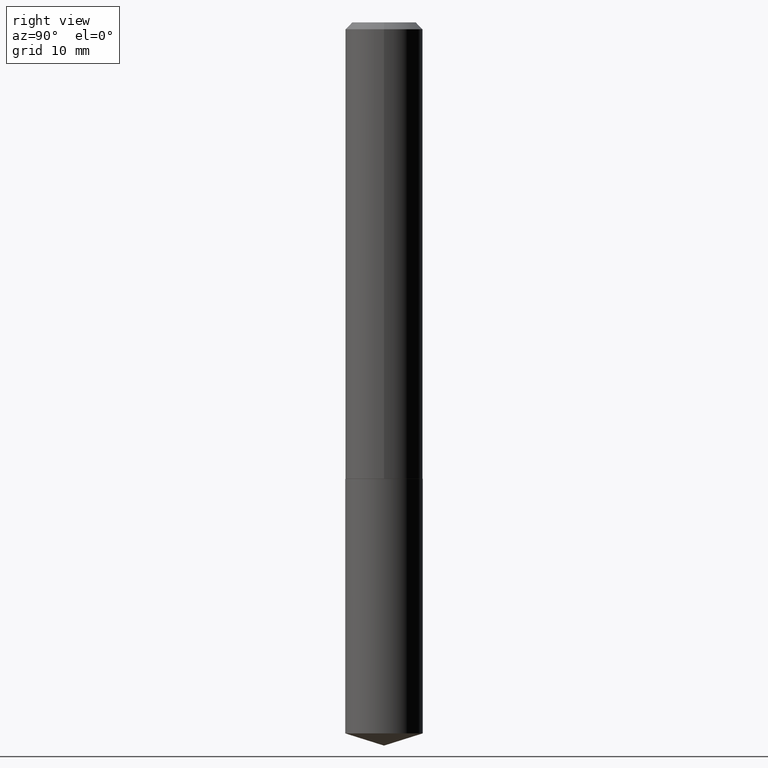
[diagram: clean part render]
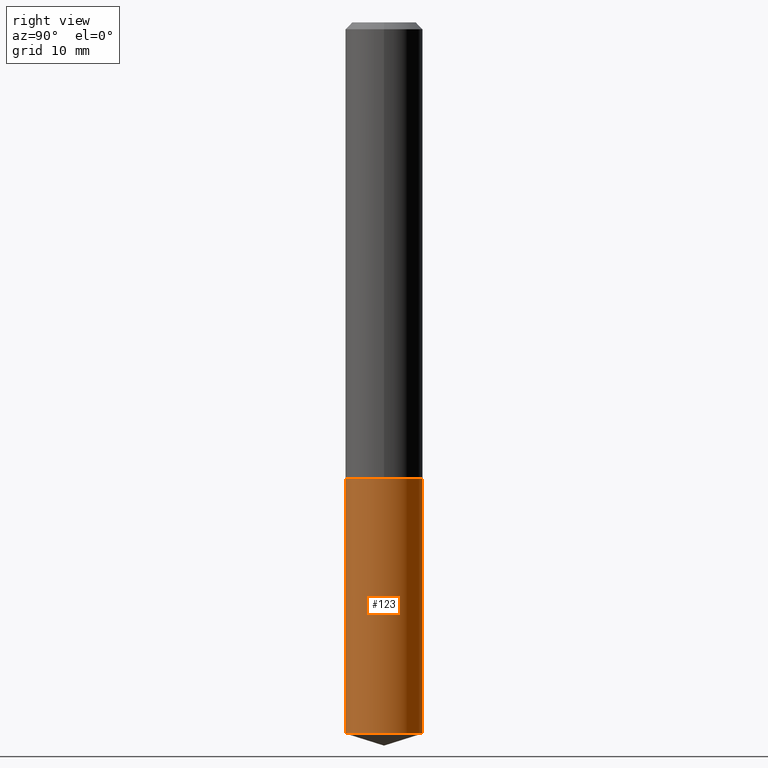
[diagram: same view with one face highlighted and labeled with its STEP entity id]
A machine part, right view. The second image highlights one B-rep face of the part: STEP entity #123.
In plain terms, the highlighted cylindrical surface (partial cylindrical patch) has radius 4.4996 mm, axis along (-0, 0, 1).
Its self-contained STEP definition (entity closure, byte-faithful):
#7 = CYLINDRICAL_SURFACE ( 'NONE', #348, 0.1771500000000000019 ) ;
#11 = CARTESIAN_POINT ( 'NONE',  ( 1.258726456399068374E-15, 0.1771499999999927299, -2.086600000000001121 ) ) ;
#20 = EDGE_LOOP ( 'NONE', ( #158, #99, #156, #253 ) ) ;
#22 = AXIS2_PLACEMENT_3D ( 'NONE', #49, #98, #292 ) ;
#33 = DIRECTION ( 'NONE',  ( -2.444942858903587164E-29, 3.492234525285384557E-15, 1.000000000000000000 ) ) ;
#43 = CARTESIAN_POINT ( 'NONE',  ( 5.102715210985907397E-29, -7.285324961630108994E-15, -2.086600000000000676 ) ) ;
#49 = CARTESIAN_POINT ( 'NONE',  ( 7.950205245703951750E-29, -1.135253781015769415E-14, -3.251244819550088483 ) ) ;
#67 = CARTESIAN_POINT ( 'NONE',  ( 1.258726456399096773E-15, 0.1771499999999885666, -3.251244819550088927 ) ) ;
#70 = DIRECTION ( 'NONE',  ( -2.444942858903587164E-29, 3.492234525285384557E-15, 1.000000000000000000 ) ) ;
#88 = VECTOR ( 'NONE', #89, 39.37007874015748143 ) ;
#89 = DIRECTION ( 'NONE',  ( -2.444942858903587164E-29, 3.492234525285384162E-15, 1.000000000000000000 ) ) ;
#98 = DIRECTION ( 'NONE',  ( -2.444942858903587164E-29, 3.492234525285384557E-15, 1.000000000000000000 ) ) ;
#99 = ORIENTED_EDGE ( 'NONE', *, *, #295, .T. ) ;
#123 = ADVANCED_FACE ( 'NONE', ( #201 ), #7, .T. ) ;
#142 = VERTEX_POINT ( 'NONE', #216 ) ;
#147 = DIRECTION ( 'NONE',  ( -6.982962677686265922E-15, -1.000000000000000000, 3.084220145260246224E-15 ) ) ;
#153 = CIRCLE ( 'NONE', #383, 0.1771500000000000019 ) ;
#156 = ORIENTED_EDGE ( 'NONE', *, *, #372, .F. ) ;
#158 = ORIENTED_EDGE ( 'NONE', *, *, #331, .T. ) ;
#165 = VERTEX_POINT ( 'NONE', #67 ) ;
#193 = CARTESIAN_POINT ( 'NONE',  ( 1.258726456399097168E-15, 0.1771499999999927299, -2.086600000000001121 ) ) ;
#201 = FACE_OUTER_BOUND ( 'NONE', #20, .T. ) ;
#216 = CARTESIAN_POINT ( 'NONE',  ( -1.237031838352071118E-15, -0.1771500000000073016, -2.086600000000000232 ) ) ;
#217 = DIRECTION ( 'NONE',  ( -2.444942858903587164E-29, 3.492234525285384162E-15, 1.000000000000000000 ) ) ;
#224 = DIRECTION ( 'NONE',  ( -6.982962677686265922E-15, -1.000000000000000000, 3.084220145260246224E-15 ) ) ;
#251 = VECTOR ( 'NONE', #217, 39.37007874015748143 ) ;
#253 = ORIENTED_EDGE ( 'NONE', *, *, #267, .F. ) ;
#267 = EDGE_CURVE ( 'NONE', #354, #142, #343, .T. ) ;
#273 = CIRCLE ( 'NONE', #22, 0.1771500000000000019 ) ;
#280 = LINE ( 'NONE', #11, #251 ) ;
#292 = DIRECTION ( 'NONE',  ( -6.982962677686265922E-15, -1.000000000000000000, 3.084220145260246224E-15 ) ) ;
#295 = EDGE_CURVE ( 'NONE', #165, #321, #280, .T. ) ;
#307 = CARTESIAN_POINT ( 'NONE',  ( 5.102715210985907397E-29, -7.285324961630108994E-15, -2.086600000000000676 ) ) ;
#321 = VERTEX_POINT ( 'NONE', #193 ) ;
#331 = EDGE_CURVE ( 'NONE', #354, #165, #273, .T. ) ;
#338 = CARTESIAN_POINT ( 'NONE',  ( -1.237031838352071118E-15, -0.1771500000000073016, -2.086600000000000232 ) ) ;
#343 = LINE ( 'NONE', #338, #88 ) ;
#347 = CARTESIAN_POINT ( 'NONE',  ( -1.237031838352041930E-15, -0.1771500000000112707, -3.251244819550088039 ) ) ;
#348 = AXIS2_PLACEMENT_3D ( 'NONE', #307, #33, #147 ) ;
#354 = VERTEX_POINT ( 'NONE', #347 ) ;
#372 = EDGE_CURVE ( 'NONE', #142, #321, #153, .T. ) ;
#383 = AXIS2_PLACEMENT_3D ( 'NONE', #43, #70, #224 ) ;